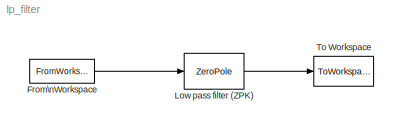
MODEL lp_filter
KIND model
BLOCK [FromWorkspace] From\nWorkspace
  SampleTime = Ts
  VariableName = [t input]
BLOCK [ZeroPole] Low pass filter (ZPK)
  Gain = [g/T]
  Poles = [-1/T]
  Zeros = []
BLOCK [ToWorkspace] To Workspace
  MaxDataPoints = inf
  SampleTime = Ts
  SaveFormat = Array
  VariableName = simout
LINE From\nWorkspace:1 -> Low pass filter (ZPK):1
LINE Low pass filter (ZPK):1 -> To Workspace:1
